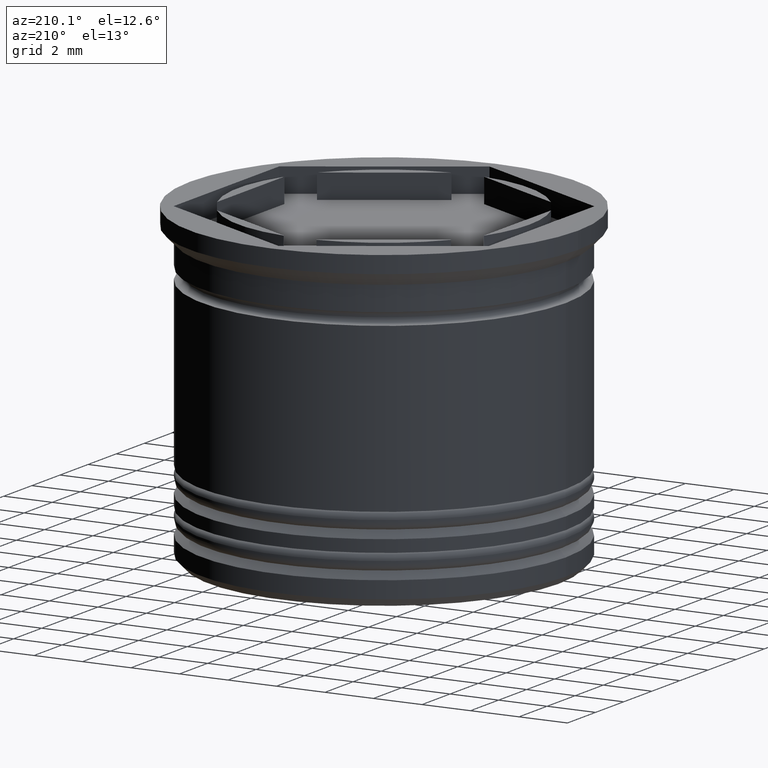
[diagram: clean part render]
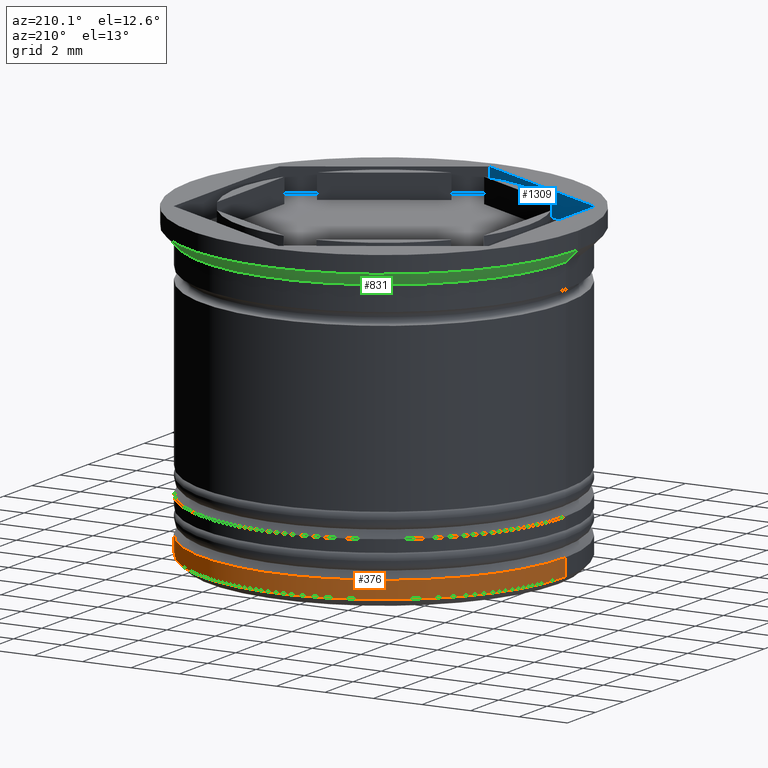
[diagram: same view with three faces highlighted in distinct colors, each labeled with its STEP entity id]
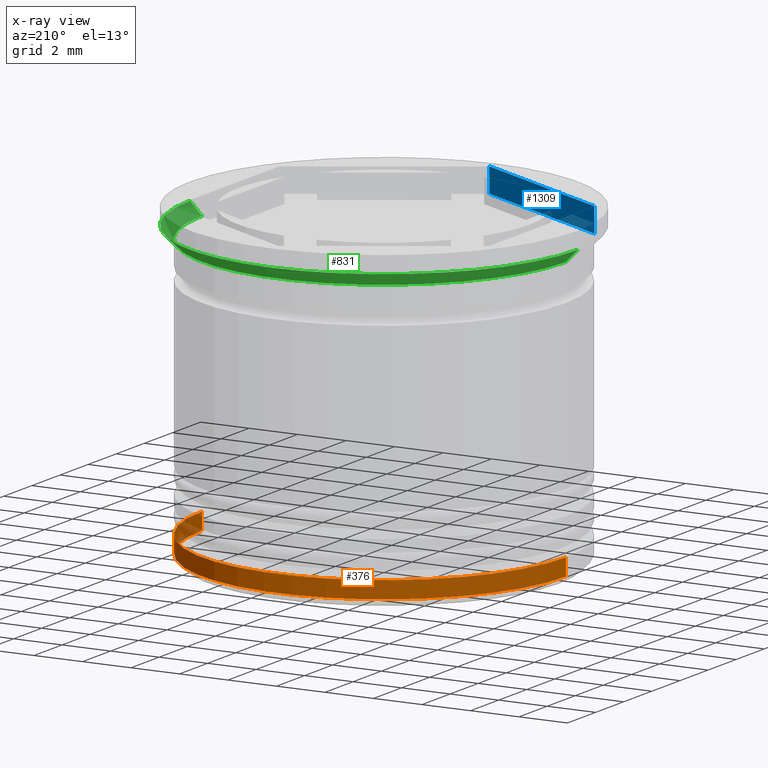
[diagram: x-ray of the same camera — body ghosted, the three highlighted faces saturated]
A machine part, auxiliary view with three faces highlighted in distinct colors.
The next image is the same camera in x-ray (body ghosted, the three faces saturated) — at least one of them is partly hidden behind the body in this view.
Their STEP definitions:

[orange] entity #376 — the highlighted cylindrical surface (partial cylindrical patch) has radius 7.5 mm, axis along (-0, -0, 1).
#39 = ORIENTED_EDGE ( 'NONE', *, *, #303, .F. ) ;
#55 = LINE ( 'NONE', #1276, #181 ) ;
#123 = VERTEX_POINT ( 'NONE', #1668 ) ;
#181 = VECTOR ( 'NONE', #1895, 1000.000000000000000 ) ;
#213 = VERTEX_POINT ( 'NONE', #509 ) ;
#286 = DIRECTION ( 'NONE',  ( -0.000000000000000000, -0.000000000000000000, 1.000000000000000000 ) ) ;
#303 = EDGE_CURVE ( 'NONE', #352, #213, #55, .T. ) ;
#352 = VERTEX_POINT ( 'NONE', #391 ) ;
#376 = ADVANCED_FACE ( 'NONE', ( #762 ), #1359, .T. ) ;
#391 = CARTESIAN_POINT ( 'NONE',  ( 7.500000000000000888, 0.000000000000000000, -12.70000000000000284 ) ) ;
#393 = EDGE_LOOP ( 'NONE', ( #1126, #1741, #1482, #39 ) ) ;
#464 = EDGE_CURVE ( 'NONE', #123, #1938, #1243, .T. ) ;
#509 = CARTESIAN_POINT ( 'NONE',  ( 7.500000000000000888, 0.000000000000000000, -12.00000000000000355 ) ) ;
#594 = CARTESIAN_POINT ( 'NONE',  ( 0.000000000000000000, 0.000000000000000000, -12.00000000000000355 ) ) ;
#762 = FACE_OUTER_BOUND ( 'NONE', #393, .T. ) ;
#783 = CARTESIAN_POINT ( 'NONE',  ( -7.500000000000000888, 9.184850993605149917E-16, -12.00000000000000355 ) ) ;
#855 = AXIS2_PLACEMENT_3D ( 'NONE', #1293, #1108, #1659 ) ;
#940 = CARTESIAN_POINT ( 'NONE',  ( -7.500000000000000888, 9.184850993605149917E-16, 0.000000000000000000 ) ) ;
#996 = VECTOR ( 'NONE', #1401, 1000.000000000000000 ) ;
#1047 = CARTESIAN_POINT ( 'NONE',  ( 0.000000000000000000, 0.000000000000000000, 0.000000000000000000 ) ) ;
#1061 = DIRECTION ( 'NONE',  ( 0.000000000000000000, 0.000000000000000000, -1.000000000000000000 ) ) ;
#1067 = CIRCLE ( 'NONE', #1282, 7.500000000000000888 ) ;
#1108 = DIRECTION ( 'NONE',  ( -0.000000000000000000, -0.000000000000000000, 1.000000000000000000 ) ) ;
#1126 = ORIENTED_EDGE ( 'NONE', *, *, #1615, .T. ) ;
#1231 = DIRECTION ( 'NONE',  ( 1.000000000000000000, 0.000000000000000000, 0.000000000000000000 ) ) ;
#1243 = LINE ( 'NONE', #940, #996 ) ;
#1268 = AXIS2_PLACEMENT_3D ( 'NONE', #1047, #286, #1231 ) ;
#1276 = CARTESIAN_POINT ( 'NONE',  ( 7.500000000000000888, 0.000000000000000000, 0.000000000000000000 ) ) ;
#1282 = AXIS2_PLACEMENT_3D ( 'NONE', #594, #1061, #1665 ) ;
#1293 = CARTESIAN_POINT ( 'NONE',  ( 0.000000000000000000, 0.000000000000000000, -12.70000000000000284 ) ) ;
#1359 = CYLINDRICAL_SURFACE ( 'NONE', #1268, 7.500000000000000888 ) ;
#1401 = DIRECTION ( 'NONE',  ( -0.000000000000000000, -0.000000000000000000, 1.000000000000000000 ) ) ;
#1482 = ORIENTED_EDGE ( 'NONE', *, *, #1917, .T. ) ;
#1507 = CIRCLE ( 'NONE', #855, 7.500000000000000888 ) ;
#1615 = EDGE_CURVE ( 'NONE', #352, #123, #1507, .T. ) ;
#1659 = DIRECTION ( 'NONE',  ( -1.000000000000000000, 0.000000000000000000, 0.000000000000000000 ) ) ;
#1665 = DIRECTION ( 'NONE',  ( -1.000000000000000000, 0.000000000000000000, 0.000000000000000000 ) ) ;
#1668 = CARTESIAN_POINT ( 'NONE',  ( -7.500000000000000888, 9.184850993605149917E-16, -12.70000000000000284 ) ) ;
#1741 = ORIENTED_EDGE ( 'NONE', *, *, #464, .T. ) ;
#1895 = DIRECTION ( 'NONE',  ( -0.000000000000000000, -0.000000000000000000, 1.000000000000000000 ) ) ;
#1917 = EDGE_CURVE ( 'NONE', #1938, #213, #1067, .T. ) ;
#1938 = VERTEX_POINT ( 'NONE', #783 ) ;

[blue] entity #1309 — the highlighted planar face has unit normal (-0.5, -0.866, 0).
#57 = VERTEX_POINT ( 'NONE', #713 ) ;
#73 = EDGE_CURVE ( 'NONE', #1880, #694, #414, .T. ) ;
#165 = PLANE ( 'NONE',  #977 ) ;
#209 = ORIENTED_EDGE ( 'NONE', *, *, #1473, .T. ) ;
#227 = EDGE_CURVE ( 'NONE', #694, #57, #498, .T. ) ;
#251 = ORIENTED_EDGE ( 'NONE', *, *, #227, .F. ) ;
#267 = ORIENTED_EDGE ( 'NONE', *, *, #73, .F. ) ;
#289 = CARTESIAN_POINT ( 'NONE',  ( -6.500000000000001776, -3.752776749732568806, 0.000000000000000000 ) ) ;
#298 = CARTESIAN_POINT ( 'NONE',  ( -6.500000000000001776, -3.752776749732568806, -1.000000000000000000 ) ) ;
#322 = DIRECTION ( 'NONE',  ( -0.000000000000000000, -0.000000000000000000, 1.000000000000000000 ) ) ;
#392 = CARTESIAN_POINT ( 'NONE',  ( -6.500000000000001776, -3.752776749732568806, -1.000000000000000000 ) ) ;
#402 = DIRECTION ( 'NONE',  ( 0.8660254037844385966, -0.4999999999999999445, 0.000000000000000000 ) ) ;
#414 = LINE ( 'NONE', #392, #1153 ) ;
#498 = LINE ( 'NONE', #1384, #1848 ) ;
#574 = CARTESIAN_POINT ( 'NONE',  ( -3.394223061414856671E-17, -7.505553499465136724, -1.000000000000000000 ) ) ;
#694 = VERTEX_POINT ( 'NONE', #574 ) ;
#713 = CARTESIAN_POINT ( 'NONE',  ( -3.394223061414856671E-17, -7.505553499465136724, 0.000000000000000000 ) ) ;
#739 = EDGE_CURVE ( 'NONE', #1758, #57, #1969, .T. ) ;
#793 = DIRECTION ( 'NONE',  ( -0.5000000000000000000, -0.8660254037844387076, 0.000000000000000000 ) ) ;
#977 = AXIS2_PLACEMENT_3D ( 'NONE', #298, #793, #1096 ) ;
#1096 = DIRECTION ( 'NONE',  ( 0.8660254037844385966, -0.4999999999999999445, 0.000000000000000000 ) ) ;
#1153 = VECTOR ( 'NONE', #402, 1000.000000000000114 ) ;
#1238 = VECTOR ( 'NONE', #1833, 1000.000000000000114 ) ;
#1309 = ADVANCED_FACE ( 'NONE', ( #1674 ), #165, .F. ) ;
#1384 = CARTESIAN_POINT ( 'NONE',  ( -3.394223061414856671E-17, -7.505553499465136724, -1.000000000000000000 ) ) ;
#1388 = ORIENTED_EDGE ( 'NONE', *, *, #739, .T. ) ;
#1471 = LINE ( 'NONE', #1481, #1974 ) ;
#1473 = EDGE_CURVE ( 'NONE', #1880, #1758, #1471, .T. ) ;
#1481 = CARTESIAN_POINT ( 'NONE',  ( -6.500000000000001776, -3.752776749732568806, -1.000000000000000000 ) ) ;
#1674 = FACE_OUTER_BOUND ( 'NONE', #1847, .T. ) ;
#1758 = VERTEX_POINT ( 'NONE', #1916 ) ;
#1811 = DIRECTION ( 'NONE',  ( -0.000000000000000000, -0.000000000000000000, 1.000000000000000000 ) ) ;
#1833 = DIRECTION ( 'NONE',  ( 0.8660254037844385966, -0.4999999999999999445, 0.000000000000000000 ) ) ;
#1847 = EDGE_LOOP ( 'NONE', ( #1388, #251, #267, #209 ) ) ;
#1848 = VECTOR ( 'NONE', #322, 1000.000000000000000 ) ;
#1880 = VERTEX_POINT ( 'NONE', #1948 ) ;
#1916 = CARTESIAN_POINT ( 'NONE',  ( -6.500000000000001776, -3.752776749732568806, 0.000000000000000000 ) ) ;
#1948 = CARTESIAN_POINT ( 'NONE',  ( -6.500000000000001776, -3.752776749732568806, -1.000000000000000000 ) ) ;
#1969 = LINE ( 'NONE', #289, #1238 ) ;
#1974 = VECTOR ( 'NONE', #1811, 1000.000000000000000 ) ;

[green] entity #831 — the highlighted conical surface has half-angle 45 deg.
#17 = VERTEX_POINT ( 'NONE', #561 ) ;
#20 = AXIS2_PLACEMENT_3D ( 'NONE', #1486, #578, #1194 ) ;
#77 = EDGE_CURVE ( 'NONE', #1993, #1472, #1594, .T. ) ;
#225 = CARTESIAN_POINT ( 'NONE',  ( -8.000000000000000000, 9.797174393178825657E-16, -0.7000000000000005107 ) ) ;
#374 = DIRECTION ( 'NONE',  ( 0.7071067811865500152, 0.000000000000000000, 0.7071067811865450192 ) ) ;
#406 = EDGE_CURVE ( 'NONE', #17, #1993, #1920, .T. ) ;
#434 = VERTEX_POINT ( 'NONE', #1370 ) ;
#483 = EDGE_CURVE ( 'NONE', #434, #1472, #1185, .T. ) ;
#561 = CARTESIAN_POINT ( 'NONE',  ( 7.499999999999998224, 0.000000000000000000, -1.199999999999999289 ) ) ;
#578 = DIRECTION ( 'NONE',  ( -0.000000000000000000, -0.000000000000000000, 1.000000000000000000 ) ) ;
#581 = CARTESIAN_POINT ( 'NONE',  ( -7.499999999999998224, 9.184850993605145972E-16, -1.199999999999999289 ) ) ;
#608 = DIRECTION ( 'NONE',  ( -0.000000000000000000, -0.000000000000000000, 1.000000000000000000 ) ) ;
#686 = ORIENTED_EDGE ( 'NONE', *, *, #406, .T. ) ;
#766 = AXIS2_PLACEMENT_3D ( 'NONE', #1540, #608, #796 ) ;
#769 = EDGE_LOOP ( 'NONE', ( #686, #1752, #1414, #909 ) ) ;
#796 = DIRECTION ( 'NONE',  ( 1.000000000000000000, 0.000000000000000000, 0.000000000000000000 ) ) ;
#831 = ADVANCED_FACE ( 'NONE', ( #1841 ), #1762, .T. ) ;
#909 = ORIENTED_EDGE ( 'NONE', *, *, #1225, .F. ) ;
#945 = VECTOR ( 'NONE', #374, 1000.000000000000000 ) ;
#1013 = DIRECTION ( 'NONE',  ( -0.7071067811865500152, 8.659560562354963673E-17, 0.7071067811865450192 ) ) ;
#1112 = CARTESIAN_POINT ( 'NONE',  ( 0.000000000000000000, 0.000000000000000000, -0.7000000000000005107 ) ) ;
#1185 = CIRCLE ( 'NONE', #1332, 8.000000000000000000 ) ;
#1194 = DIRECTION ( 'NONE',  ( 1.000000000000000000, 0.000000000000000000, 0.000000000000000000 ) ) ;
#1225 = EDGE_CURVE ( 'NONE', #17, #434, #1280, .T. ) ;
#1280 = LINE ( 'NONE', #1902, #945 ) ;
#1328 = CARTESIAN_POINT ( 'NONE',  ( -8.000000000000000000, 9.797174393178825657E-16, -0.7000000000000005107 ) ) ;
#1332 = AXIS2_PLACEMENT_3D ( 'NONE', #1112, #1570, #1719 ) ;
#1370 = CARTESIAN_POINT ( 'NONE',  ( 8.000000000000000000, 0.000000000000000000, -0.7000000000000005107 ) ) ;
#1414 = ORIENTED_EDGE ( 'NONE', *, *, #483, .F. ) ;
#1472 = VERTEX_POINT ( 'NONE', #225 ) ;
#1486 = CARTESIAN_POINT ( 'NONE',  ( 0.000000000000000000, 0.000000000000000000, -1.199999999999999289 ) ) ;
#1540 = CARTESIAN_POINT ( 'NONE',  ( 0.000000000000000000, 0.000000000000000000, -0.7000000000000005107 ) ) ;
#1549 = VECTOR ( 'NONE', #1013, 1000.000000000000000 ) ;
#1570 = DIRECTION ( 'NONE',  ( -0.000000000000000000, -0.000000000000000000, 1.000000000000000000 ) ) ;
#1594 = LINE ( 'NONE', #1328, #1549 ) ;
#1719 = DIRECTION ( 'NONE',  ( -1.000000000000000000, 0.000000000000000000, 0.000000000000000000 ) ) ;
#1752 = ORIENTED_EDGE ( 'NONE', *, *, #77, .T. ) ;
#1762 = CONICAL_SURFACE ( 'NONE', #766, 8.000000000000000000, 0.7853981633974518317 ) ;
#1841 = FACE_OUTER_BOUND ( 'NONE', #769, .T. ) ;
#1902 = CARTESIAN_POINT ( 'NONE',  ( 8.000000000000000000, 0.000000000000000000, -0.7000000000000005107 ) ) ;
#1920 = CIRCLE ( 'NONE', #20, 7.499999999999998224 ) ;
#1993 = VERTEX_POINT ( 'NONE', #581 ) ;